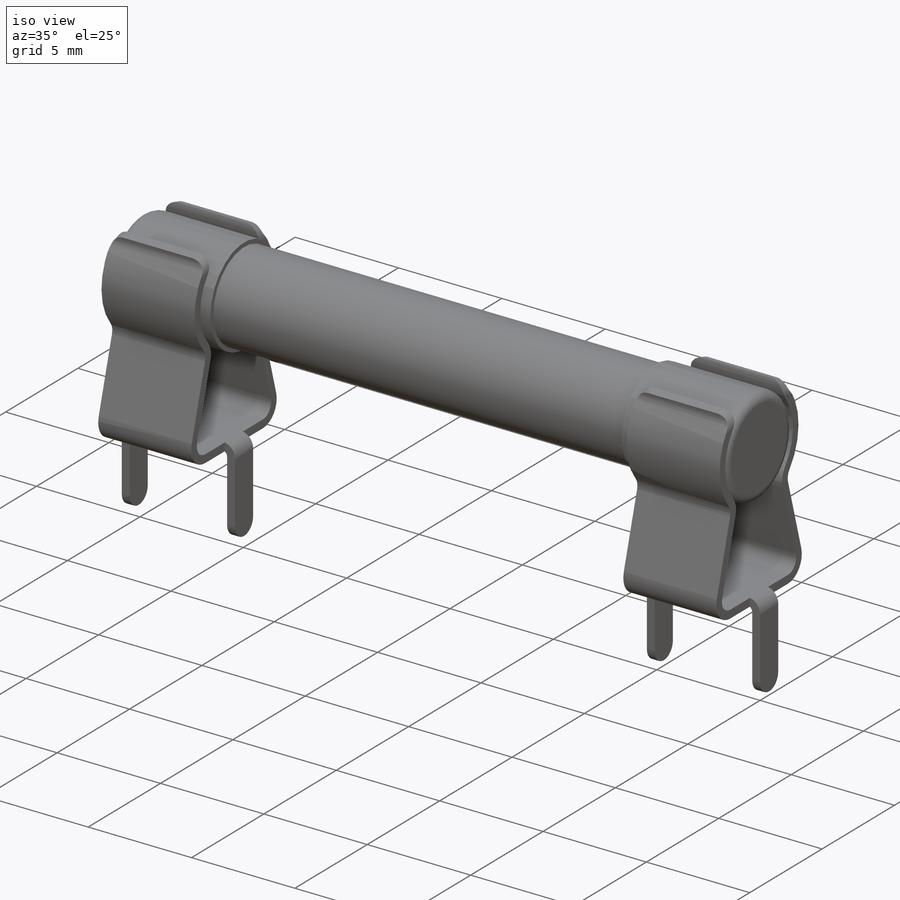
[diagram: iso view]
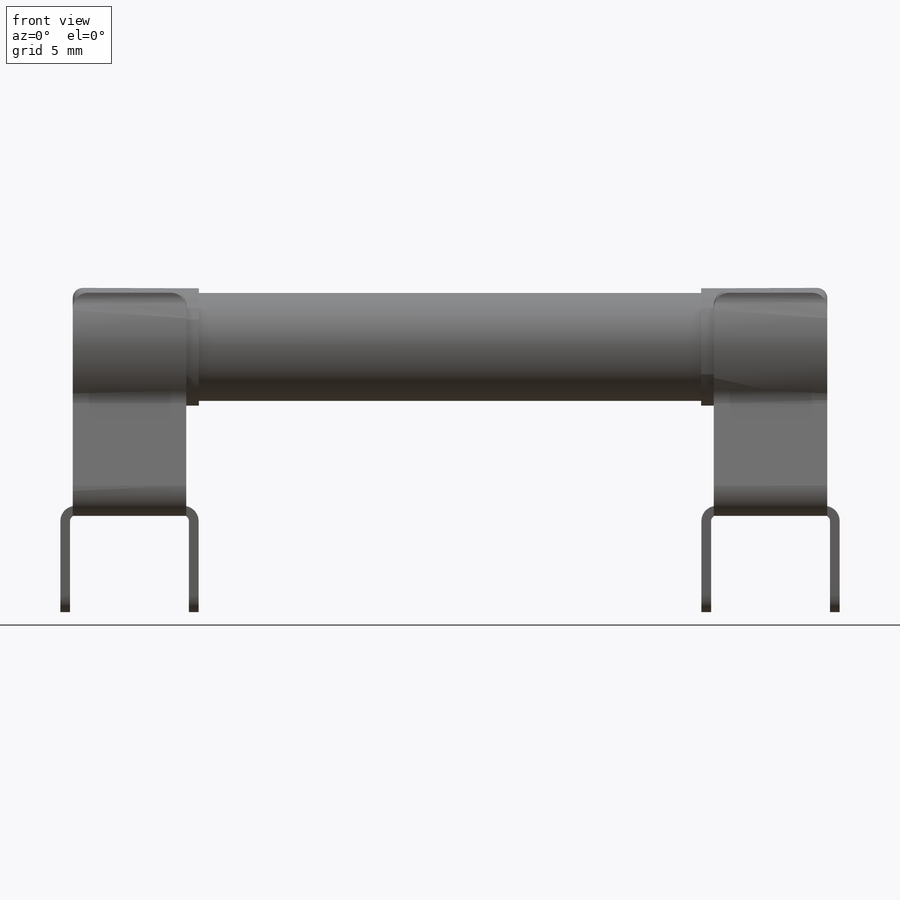
[diagram: front view]
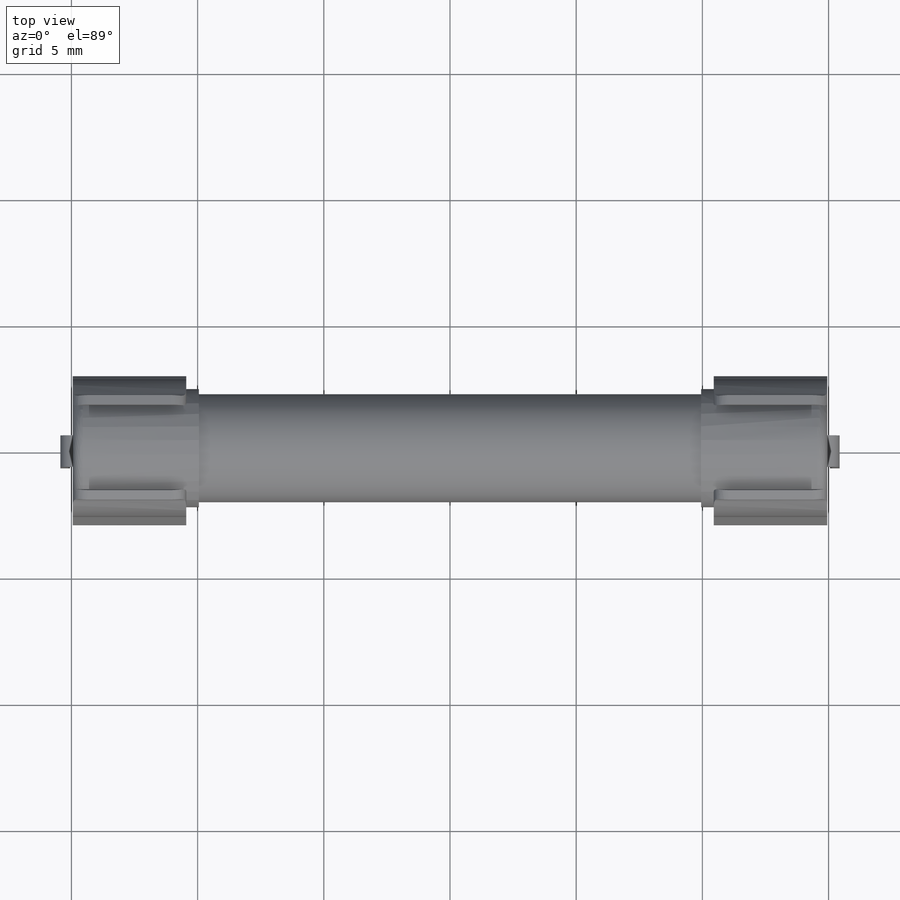
[diagram: top view]
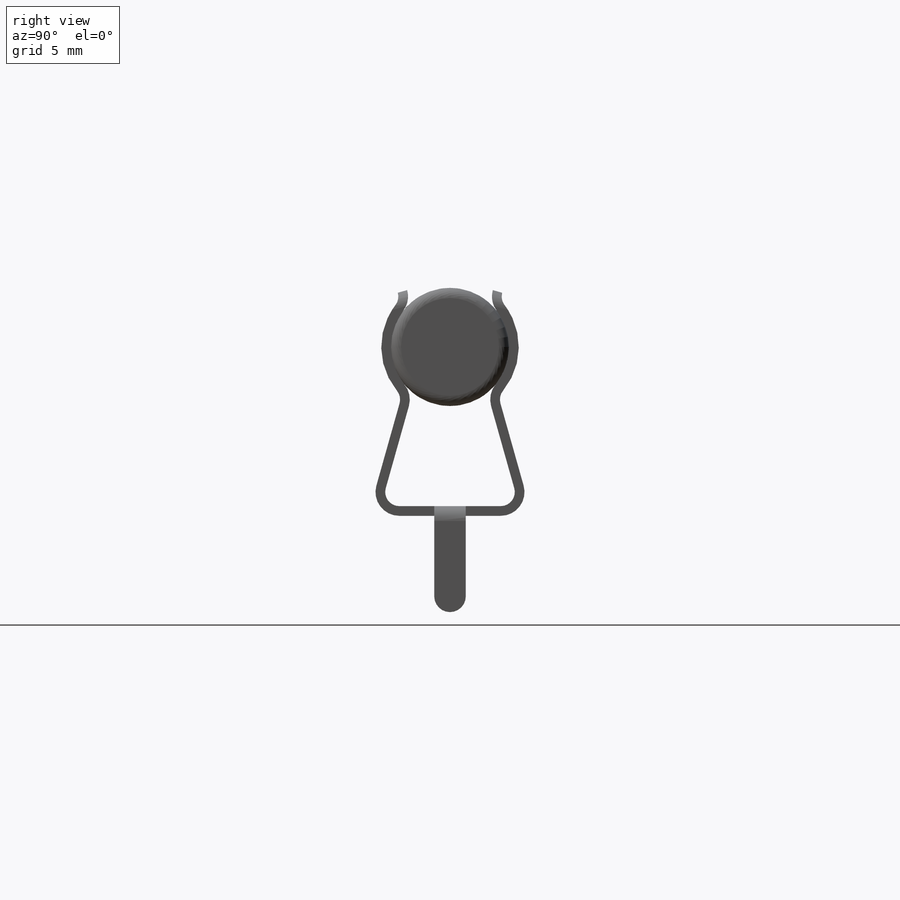
[diagram: right view]
SOLIDWORKS PART (.sldprt)
format: sldprt  version: not decoded by parser v0  size: 387,072 bytes
history: native  units: mm
features: sketch x6, extrude x5, fillet x3, mirror x2, material x1, plane x1 (+12 scaffold rows collapsed)
feature tree (30):
  scaffold x12  (default folders/planes/origin — collapsed)
  material  "Material <not specified>"
  sketch  "Sketch1"  dims[c1.D1=4.28mm c1.D3=~2.69641mm c1.D2=6.5mm c2.D3=0.1mm]
  extrude  "Base-Extrude"  Depth=9.95mm
  sketch  "Sketch2"  dims[D1=4.68mm]
  extrude  "Boss-Extrude1"  Depth=5mm
  fillet  "Fillet1"  Radius=0.4mm
  sketch  "Sketch3"  dims[c1.D1=0.943mm c1.D2=0.943mm c1.D3=4.68mm c1.D5=0.557mm c2.D3=3.967mm c2.D4=~5.047474mm c3.D4=15.74deg c3.D6=~1.117862mm c4.D6=15.74deg c4.D7=1.699mm c4.D8=0.385mm c5.D8=15.74deg c5.D9=2.917mm c5.D6=0.385mm]
  extrude  "Boss-Extrude2"  Depth=4.5mm
  sketch  "Sketch4"  dims[c1.D2=0.6mm c1.D1=0.49mm c1.D3=~0.315367mm c2.D2=~0.175036mm c2.D3=4.2mm c2.D4=0.385mm]
  extrude  "Boss-Extrude3"  Depth=1.25mm
  fillet  "Fillet2"  Radius=0.625mm
  plane  "Plane4"  Offset=2.25mm
  mirror  "Mirror1"
  fillet  "Fillet3"  Radius=0.6mm
  mirror  "Boss-Mirror1"
  sketch  "Sketch5"  dims[D1=0.5mm]
  extrude  "Boss-Extrude4"  [1 undecoded]
  sketch  "Component_Outline"  dims[D1=0.0mm D2=0.0mm]
decode coverage: 13 of 16 modeling features carry decoded parameters
note: ~ marks probable driven/reference dimensions
note: 1 parameter value undecoded
note: suppression state not decoded; provenance and decode notes live in map.json
